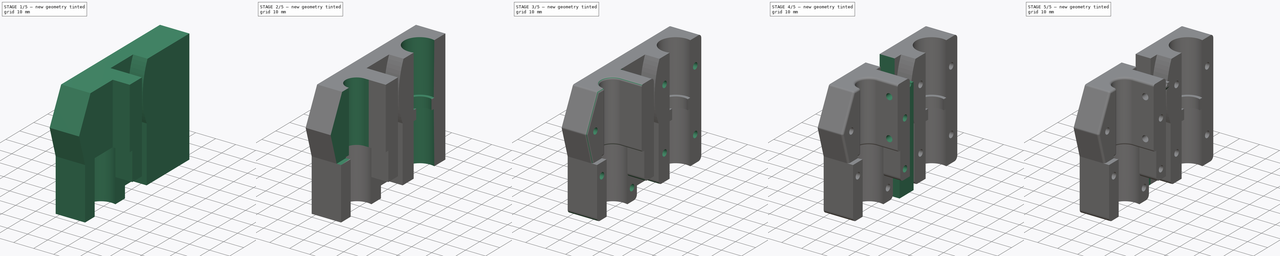
[diagram: build sequence overview — one tinted view per stage of 5, left to right]
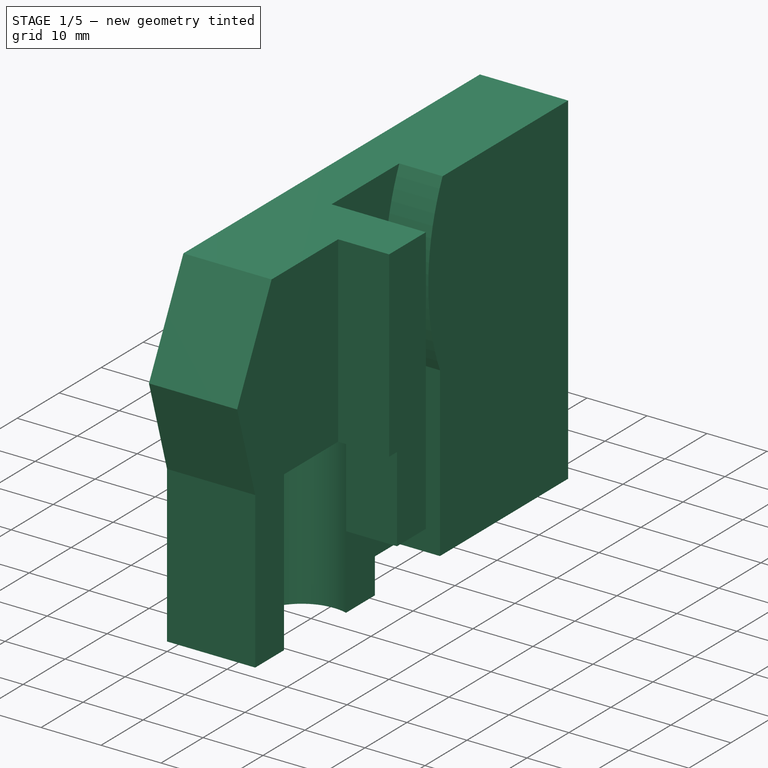
[diagram: stage 1 of 5 — iso view after this stage's code; geometry added in this stage tinted green]
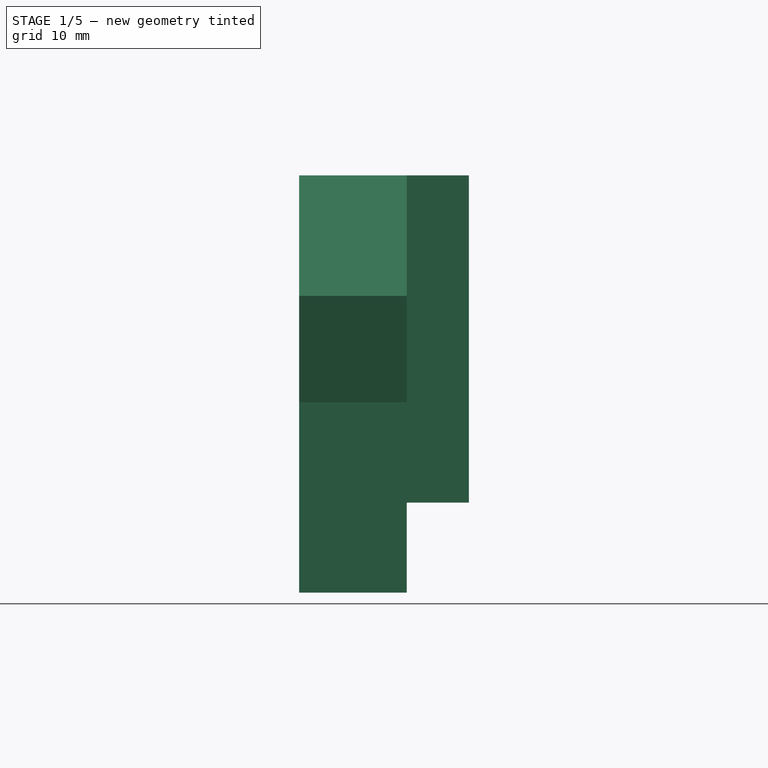
[diagram: stage 1 of 5 — front view after this stage's code; geometry added in this stage tinted green]
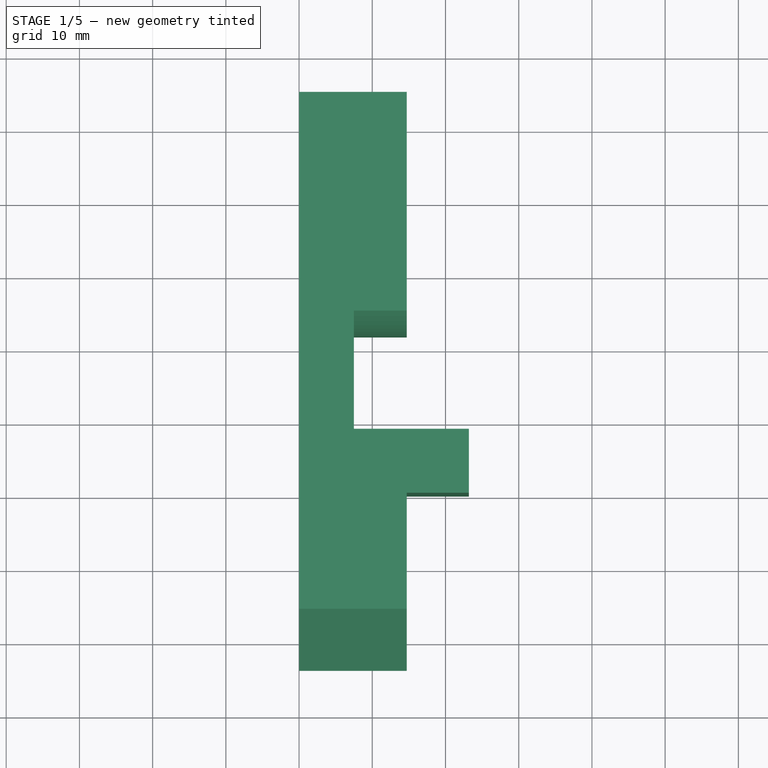
[diagram: stage 1 of 5 — top view after this stage's code; geometry added in this stage tinted green]
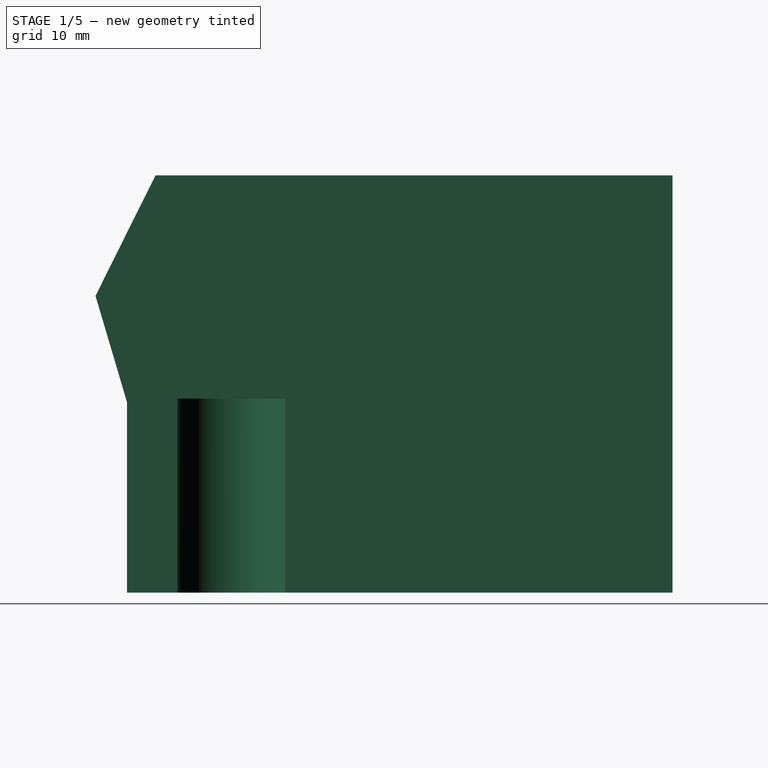
[diagram: stage 1 of 5 — right view after this stage's code; geometry added in this stage tinted green]
FCSTD DOCUMENT  (FreeCAD 0.16R6712 (Git))
Label: Toronado-Carrier
License: CC-BY 3.0
LicenseURL: http://creativecommons.org/licenses/by/3.0/
objects: Sketcher::SketchObject×17, PartDesign::Pocket×14, PartDesign::Pad×3, PartDesign::Fillet×3
note: 54 computed .brp shape members not serialized (recipe doc carries the construction recipe); baked Part::Feature solids carry a one-line shape summary decoded from their .brp

FEATURE [Sketcher::SketchObject] Sketch018
  Placement = pos=(0,0,0) rot=(0.57735,0.57735,0.57735;2.0944rad)
  sketch-geometry (6):
    g0: LineSegment StartX=0 StartY=0 StartZ=0 EndX=0 EndY=26 EndZ=0
    g1: LineSegment StartX=0 StartY=26 StartZ=0 EndX=-4.30684 EndY=40.5396 EndZ=0
    g2: LineSegment StartX=-4.30684 StartY=40.5396 StartZ=0 EndX=3.9 EndY=57 EndZ=0
    g3: LineSegment StartX=3.9 StartY=57 StartZ=0 EndX=74.5 EndY=57 EndZ=0
    g4: LineSegment StartX=74.5 StartY=57 StartZ=0 EndX=74.5 EndY=0 EndZ=0
    g5: LineSegment StartX=74.5 StartY=0 StartZ=0 EndX=0 EndY=0 EndZ=0
  constraints (17):
    c: Coincident(g-1,g0)
    c: Vertical(g0)
    c: Coincident(g0,g1)
    c: Coincident(g1,g2)
    c: Coincident(g2,g3)
    c: Horizontal(g3)
    c: Coincident(g3,g4)
    c: PointOnObject(g4,g-1)
    c: Vertical(g4)
    c: Coincident(g4,g5)
    c: Coincident(g5,g0)
    c: Distance(g4) = 57
    c: Distance(g5) = 74.5
    c: Distance(g0) = 26
    c: Distance(g3) = 70.6
    c: Angle(g1,g-2) = 2.85361
    c: Angle(g-2,g2) = 2.67908
FEATURE [PartDesign::Pad] Pad007
  Length = 14.7
  Length2 = 100
  Placement = pos=(0,0,0) rot=(0.57735,0.57735,0.57735;2.0944rad)
  Sketch = -> Sketch018
  Type = 0
FEATURE [Sketcher::SketchObject] Sketch019
  ExternalGeometry = -> [Pad007]
  Placement = pos=(14.7,0,0) rot=(0.57735,0.57735,0.57735;2.0944rad)
  Support = -> Pad007 [Face8]
  sketch-geometry (6):
    g0: LineSegment StartX=19.7447 StartY=57 StartZ=0 EndX=28.4947 EndY=57 EndZ=0
    g1: LineSegment StartX=28.4947 StartY=57 StartZ=0 EndX=28.4947 EndY=12.3 EndZ=0
    g2: LineSegment StartX=28.4947 StartY=12.3 StartZ=0 EndX=21.6234 EndY=12.3 EndZ=0
    g3: LineSegment StartX=21.6234 StartY=12.3 StartZ=0 EndX=21.6234 EndY=26.5 EndZ=0
    g4: LineSegment StartX=21.6234 StartY=26.5 StartZ=0 EndX=19.7447 EndY=26.5 EndZ=0
    g5: LineSegment StartX=19.7447 StartY=26.5 StartZ=0 EndX=19.7447 EndY=57 EndZ=0
  constraints (18):
    c: PointOnObject(g0,g-3)
    c: PointOnObject(g0,g-3)
    c: Coincident(g0,g1)
    c: Vertical(g1)
    c: Coincident(g1,g2)
    c: Horizontal(g2)
    c: Coincident(g2,g3)
    c: Vertical(g3)
    c: Coincident(g3,g4)
    c: Horizontal(g4)
    c: Coincident(g4,g5)
    c: Coincident(g5,g0)
    c: Vertical(g5)
    c: DistanceX(g-1,g0) = 19.7447
    c: Distance(g0) = 8.75
    c: Distance(g1) = 44.7
    c: Distance(g2) = 6.8713
    c: Distance(g5) = 30.5
FEATURE [PartDesign::Pad] Pad008
  Length = 8.5
  Length2 = 100
  Placement = pos=(0,0,0) rot=(0.57735,0.57735,0.57735;2.0944rad)
  Sketch = -> Sketch019
  Type = 0
FEATURE [Sketcher::SketchObject] Sketch021
  ExternalGeometry = -> [Pad008]
  Placement = pos=(14.7,0,0) rot=(0.57735,0.57735,0.57735;2.0944rad)
  Support = -> Pad008 [Face5]
  sketch-geometry (6):
    g0: ArcOfCircle CenterX=76.9236 CenterY=41.7971 CenterZ=0 NormalX=0 NormalY=0 NormalZ=1 Radius=35.7025 StartAngle=2.70172 EndAngle=3.53837
    g1: LineSegment StartX=43.9947 StartY=-6 StartZ=0 EndX=43.9947 EndY=28 EndZ=0
    g2: LineSegment StartX=43.9947 StartY=-6 StartZ=0 EndX=28.4947 EndY=-6 EndZ=0
    g3: LineSegment StartX=28.4947 StartY=-6 StartZ=0 EndX=28.4947 EndY=65 EndZ=0
    g4: LineSegment StartX=28.4947 StartY=65 StartZ=0 EndX=44.6197 EndY=65 EndZ=0
    g5: LineSegment StartX=44.6197 StartY=65 StartZ=0 EndX=44.6197 EndY=57 EndZ=0
  constraints (19):
    c: Coincident(g1,g0)
    c: Vertical(g1)
    c: Coincident(g1,g2)
    c: Horizontal(g2)
    c: Coincident(g2,g3)
    c: Vertical(g3)
    c: Coincident(g3,g4)
    c: Horizontal(g4)
    c: Distance(g2) = 15.5
    c: Distance(g3) = 71
    c: DistanceY(g-1,g0) = 28
    c: Coincident(g4,g5)
    c: Coincident(g5,g0)
    c: Vertical(g5)
    c: Distance(g4) = 16.125
    c: DistanceY(g-1,g2) = -6
    c: Radius(g0) = 35.7025
    c: PointOnObject(g-4,g3)
    c: PointOnObject(g0,g-4)
FEATURE [PartDesign::Pocket] Pocket017
  Length = 7.22
  Placement = pos=(0,0,0) rot=(0.57735,0.57735,0.57735;2.0944rad)
  Sketch = -> Sketch021
  Type = 0
FEATURE [Sketcher::SketchObject] Sketch022
  Placement = pos=(0,0,0) rot=(0.707107,0.707107,0;3.14159rad)
  Support = -> Pocket017 [Face2]
  sketch-geometry (1):
    g0: Circle CenterX=14.25 CenterY=12.5 CenterZ=0 NormalX=0 NormalY=0 NormalZ=1 Radius=7.7
  constraints (3):
    c: Radius(g0) = 7.7
    c: DistanceX(g-1,g0) = 14.25
    c: DistanceY(g-1,g0) = 12.5
FEATURE [PartDesign::Pocket] Pocket018
  Length = 26.5
  Placement = pos=(0,0,0) rot=(0.57735,0.57735,0.57735;2.0944rad)
  Sketch = -> Sketch022
  Type = 0
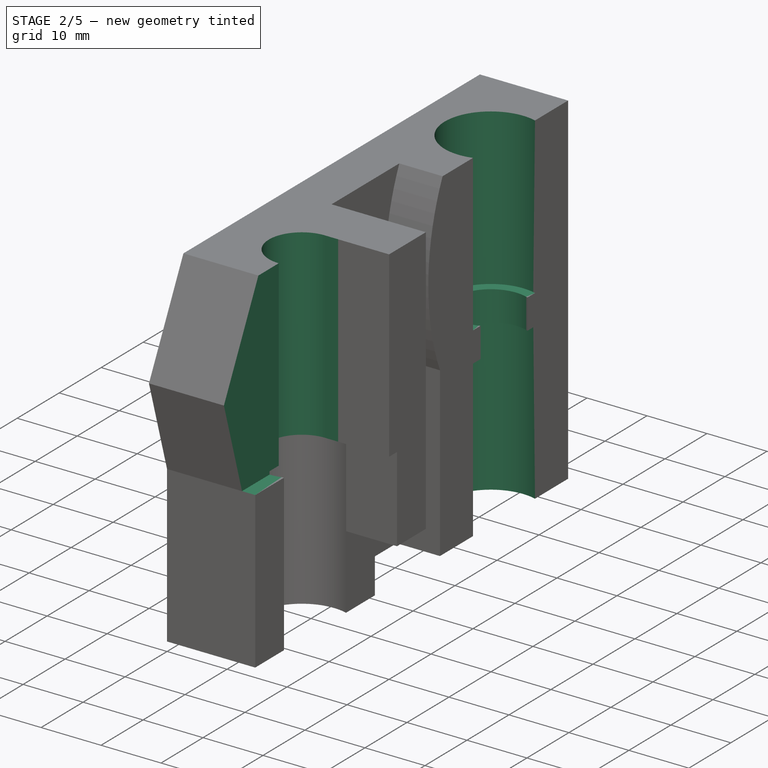
[diagram: stage 2 of 5 — iso view after this stage's code; geometry added in this stage tinted green]
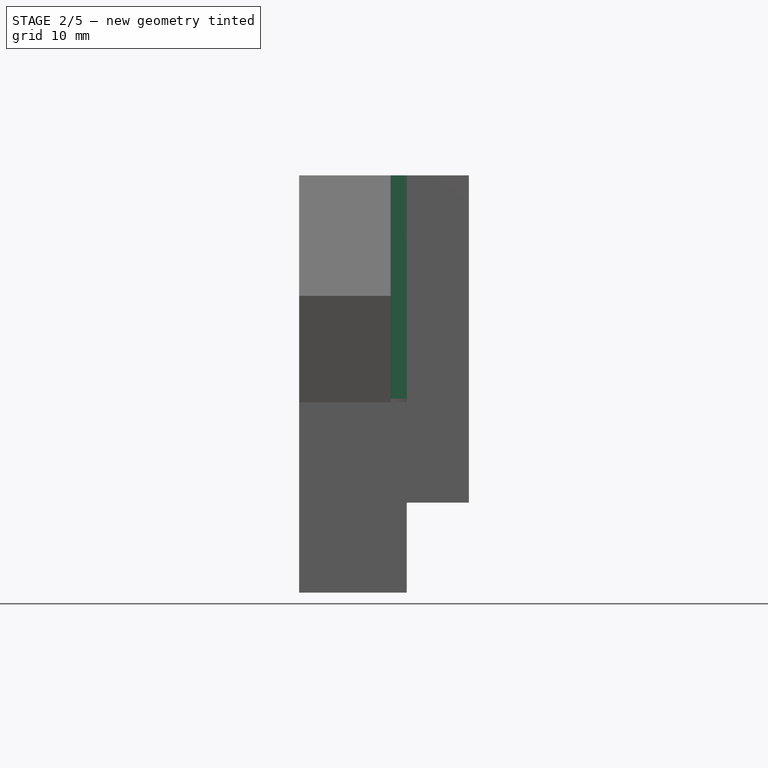
[diagram: stage 2 of 5 — front view after this stage's code; geometry added in this stage tinted green]
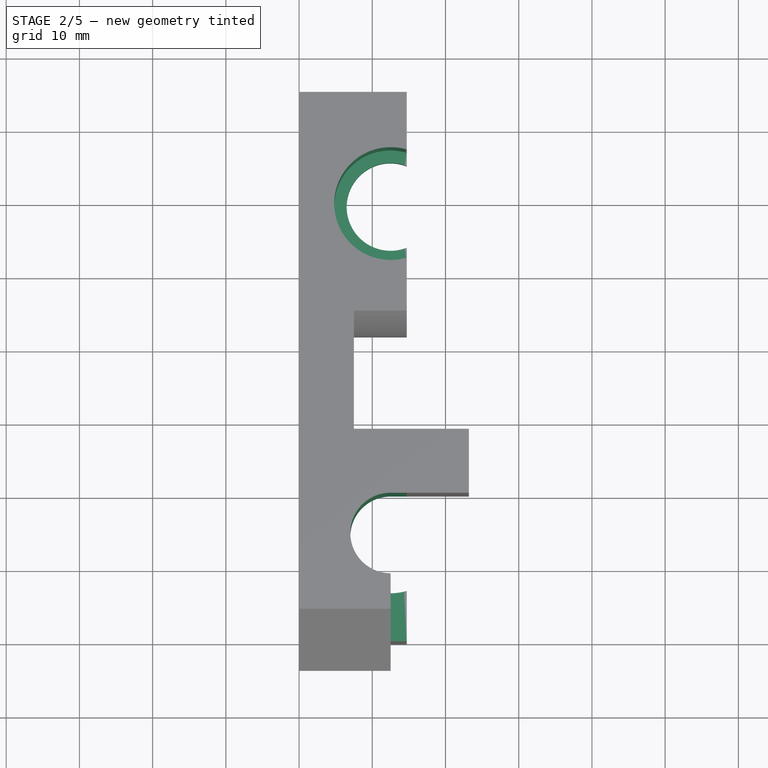
[diagram: stage 2 of 5 — top view after this stage's code; geometry added in this stage tinted green]
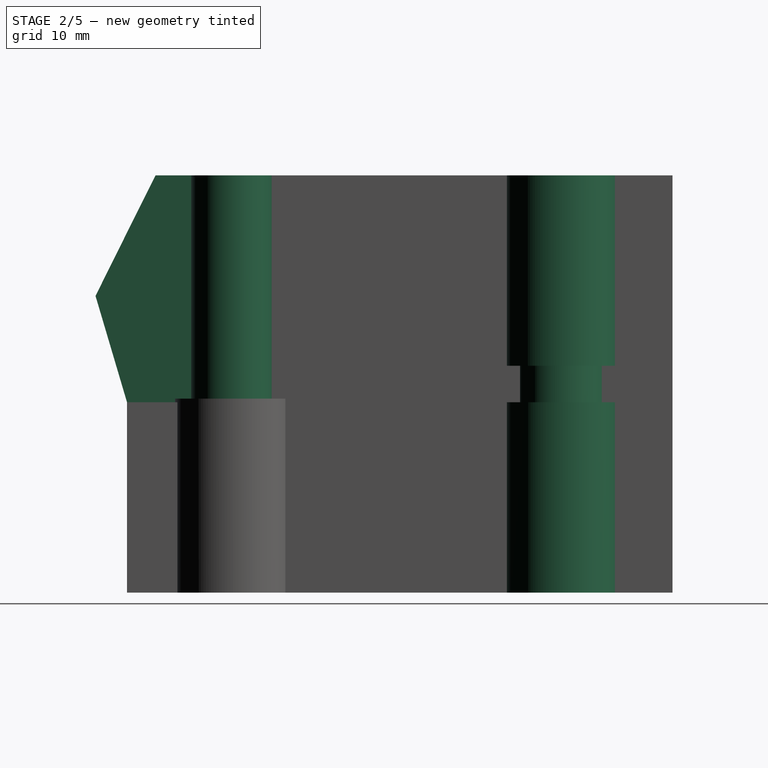
[diagram: stage 2 of 5 — right view after this stage's code; geometry added in this stage tinted green]
FEATURE [Sketcher::SketchObject] Sketch023
  ExternalGeometry = -> [Pocket018]
  Placement = pos=(0,0,0) rot=(0.707107,0.707107,0;3.14159rad)
  Support = -> Pocket018 [Face2]
  sketch-geometry (1):
    g0: Circle CenterX=59.25 CenterY=12.5 CenterZ=0 NormalX=0 NormalY=0 NormalZ=1 Radius=7.7
  constraints (3):
    c: DistanceX(g-3,g0) = 45
    c: DistanceY(g-3,g0) = 0
    c: Radius(g0) = 7.7
FEATURE [PartDesign::Pocket] Pocket019
  Length = 26
  Placement = pos=(0,0,0) rot=(0.57735,0.57735,0.57735;2.0944rad)
  Sketch = -> Sketch023
  Type = 0
FEATURE [Sketcher::SketchObject] Sketch024
  ExternalGeometry = -> [Pocket019]
  Placement = pos=(0,0,57) rot=(0,0,-1;1.5708rad)
  Support = -> Pocket019 [Face17]
  sketch-geometry (2):
    g0: Circle CenterX=-59.25 CenterY=12.5 CenterZ=0 NormalX=0 NormalY=0 NormalZ=1 Radius=6
    g1: Circle CenterX=-14.25 CenterY=12.5 CenterZ=0 NormalX=0 NormalY=0 NormalZ=1 Radius=5.5
  constraints (4):
    c: Radius(g0) = 6
    c: Radius(g1) = 5.5
    c: Coincident(g0,g-5)
    c: Coincident(g1,g-6)
FEATURE [PartDesign::Pocket] Pocket020
  Length = 5
  Placement = pos=(0,0,0) rot=(0.57735,0.57735,0.57735;2.0944rad)
  Sketch = -> Sketch024
  Type = 1
FEATURE [Sketcher::SketchObject] Sketch025
  ExternalGeometry = -> [Pocket020]
  Placement = pos=(0,0,57) rot=(0,0,-1;1.5708rad)
  Support = -> Pocket020 [Face18]
  sketch-geometry (1):
    g0: Circle CenterX=-59.25 CenterY=12.5 CenterZ=0 NormalX=0 NormalY=0 NormalZ=1 Radius=7.7
  constraints (2):
    c: Radius(g0) = 7.7
    c: Coincident(g0,g-4)
FEATURE [PartDesign::Pocket] Pocket021
  Length = 26
  Placement = pos=(0,0,0) rot=(0.57735,0.57735,0.57735;2.0944rad)
  Sketch = -> Sketch025
  Type = 0
FEATURE [Sketcher::SketchObject] Sketch020
  ExternalGeometry = -> [Pad008,Pocket021]
  Placement = pos=(14.7,0,0) rot=(0.57735,0.57735,0.57735;2.0944rad)
  Support = -> Pocket021 [Face5]
  sketch-geometry (4):
    g0: LineSegment StartX=19.7447 StartY=26 StartZ=0 EndX=-6 EndY=26 EndZ=0
    g1: LineSegment StartX=-6 StartY=26 StartZ=0 EndX=-6 EndY=61 EndZ=0
    g2: LineSegment StartX=-6 StartY=61 StartZ=0 EndX=19.7447 EndY=61 EndZ=0
    g3: LineSegment StartX=19.7447 StartY=61 StartZ=0 EndX=19.7447 EndY=26 EndZ=0
  constraints (12):
    c: Coincident(g0,g1)
    c: Coincident(g1,g2)
    c: Coincident(g2,g3)
    c: Coincident(g3,g0)
    c: Horizontal(g0)
    c: Horizontal(g2)
    c: Vertical(g1)
    c: Vertical(g3)
    c: PointOnObject(g-3,g0)
    c: Distance(g1) = 35
    c: DistanceX(g-1,g0) = -6
    c: PointOnObject(g-4,g3)
FEATURE [PartDesign::Pocket] Pocket022
  Length = 2.2
  Placement = pos=(0,0,0) rot=(0.57735,0.57735,0.57735;2.0944rad)
  Sketch = -> Sketch020
  Type = 0
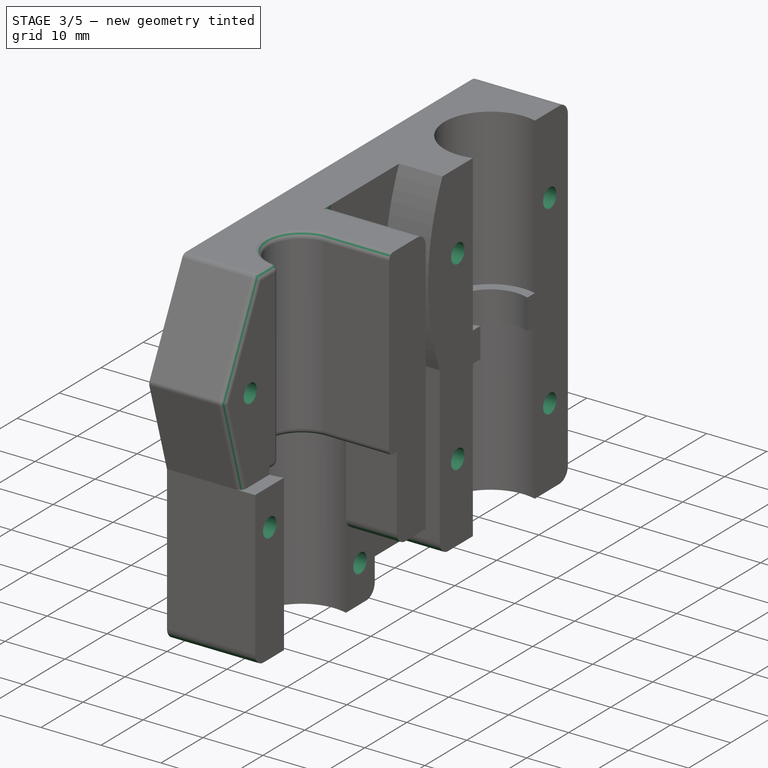
[diagram: stage 3 of 5 — iso view after this stage's code; geometry added in this stage tinted green]
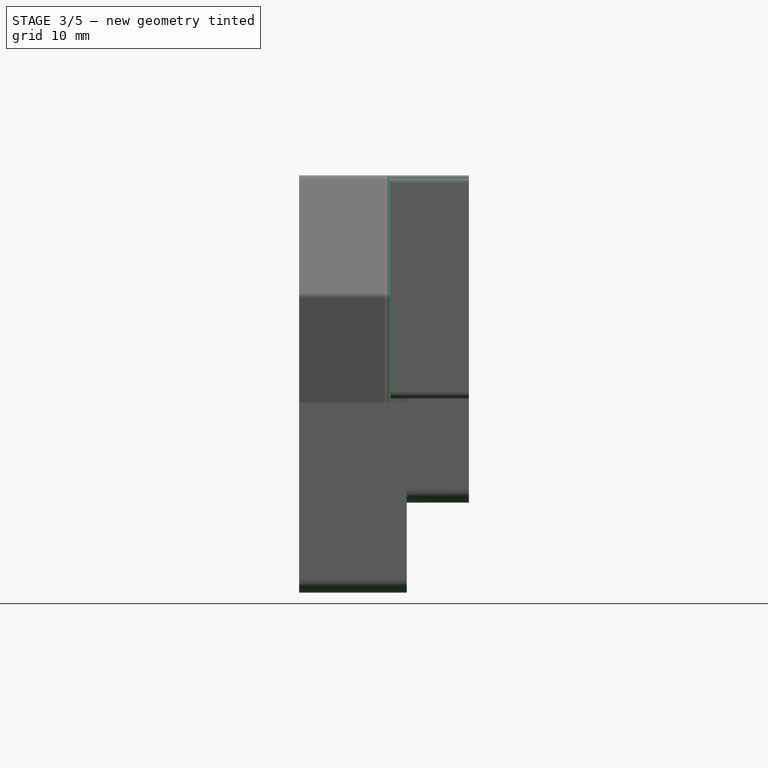
[diagram: stage 3 of 5 — front view after this stage's code; geometry added in this stage tinted green]
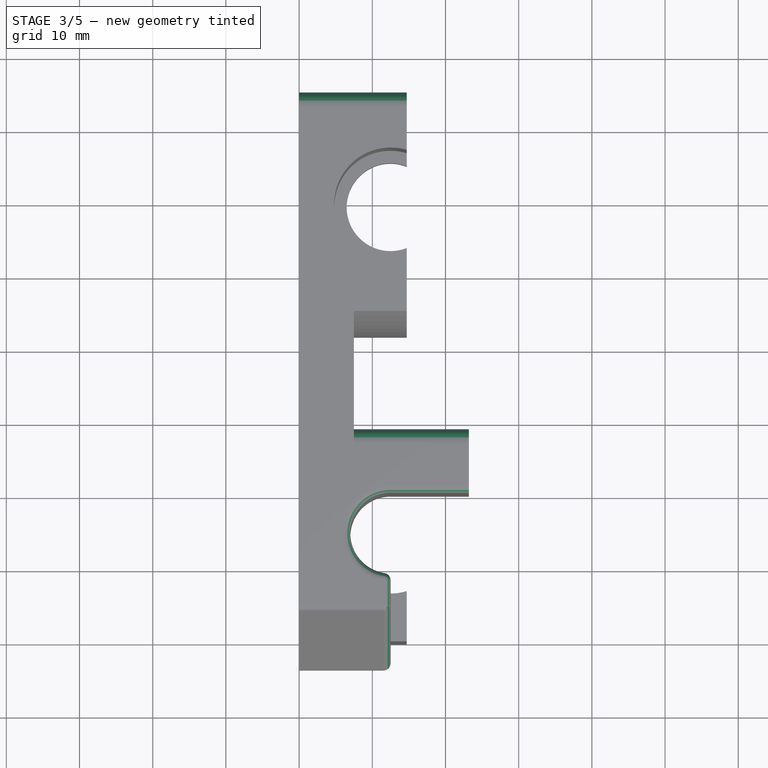
[diagram: stage 3 of 5 — top view after this stage's code; geometry added in this stage tinted green]
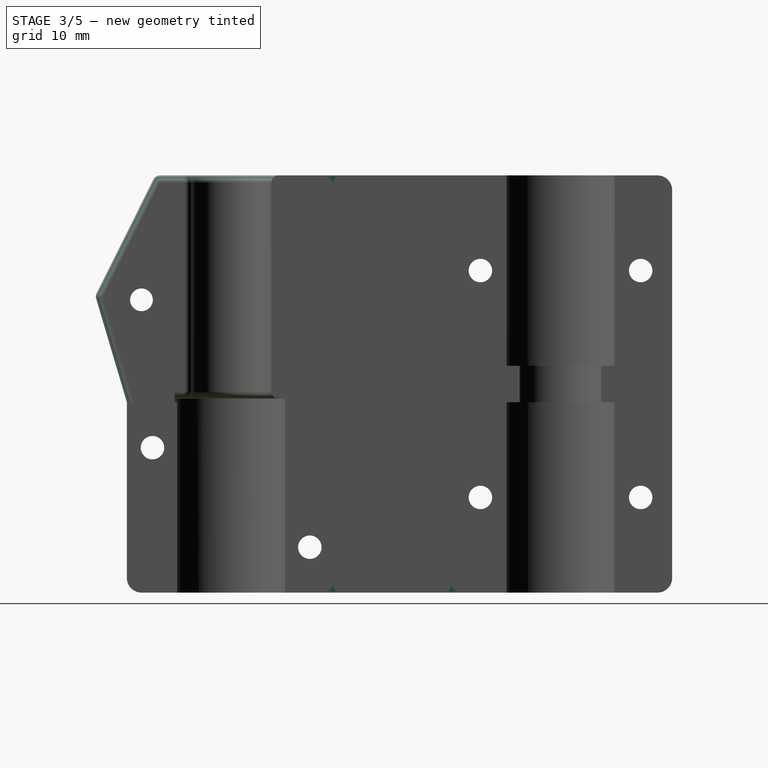
[diagram: stage 3 of 5 — right view after this stage's code; geometry added in this stage tinted green]
FEATURE [PartDesign::Fillet] Fillet
  Base = -> Pocket022 [Edge71,Edge78]
  Placement = pos=(0,0,0) rot=(0.57735,0.57735,0.57735;2.0944rad)
  Radius = 1
FEATURE [PartDesign::Fillet] Fillet001
  Base = -> Fillet [Edge8,Edge6,Edge30,Edge40,Edge32]
  Placement = pos=(0,0,0) rot=(0.57735,0.57735,0.57735;2.0944rad)
  Radius = 1
FEATURE [PartDesign::Fillet] Fillet002
  Base = -> Fillet001 [Edge95,Edge134,Edge101,Edge38,Edge39,Edge8,Edge7,Edge27]
  Placement = pos=(0,0,0) rot=(0.57735,0.57735,0.57735;2.0944rad)
  Radius = 2
FEATURE [Sketcher::SketchObject] Sketch026
  Placement = pos=(14.7,0,0) rot=(0.57735,0.57735,0.57735;2.0944rad)
  Support = -> Fillet002 [Face51]
  sketch-geometry (7):
    g0: Circle CenterX=2 CenterY=40 CenterZ=0 NormalX=0 NormalY=0 NormalZ=1 Radius=1.55
    g1: Circle CenterX=3.5 CenterY=19.8 CenterZ=0 NormalX=0 NormalY=0 NormalZ=1 Radius=1.6
    g2: Circle CenterX=25 CenterY=6.2 CenterZ=0 NormalX=0 NormalY=0 NormalZ=1 Radius=1.6
    g3: Circle CenterX=48.3 CenterY=44 CenterZ=0 NormalX=0 NormalY=0 NormalZ=1 Radius=1.6
    g4: Circle CenterX=48.3 CenterY=13 CenterZ=0 NormalX=0 NormalY=0 NormalZ=1 Radius=1.6
    g5: Circle CenterX=70.2 CenterY=44 CenterZ=0 NormalX=0 NormalY=0 NormalZ=1 Radius=1.6
    g6: Circle CenterX=70.2 CenterY=13 CenterZ=0 NormalX=0 NormalY=0 NormalZ=1 Radius=1.6
  constraints (21):
    c: Radius(g5) = 1.6
    c: Equal(g5,g6)
    c: Equal(g6,g3)
    c: Equal(g3,g4)
    c: Equal(g4,g2)
    c: DistanceX(g6,g5) = 0
    c: DistanceY(g5,g6) = -31
    c: DistanceY(g3,g4) = -31
    c: DistanceY(g3,g5) = 0
    c: DistanceX(g3,g4) = 0
    c: DistanceY(g-1,g4) = 13
    c: DistanceY(g-1,g2) = 6.2
    c: DistanceX(g-1,g2) = 25
    c: DistanceX(g-1,g4) = 48.3
    c: DistanceX(g4,g6) = 21.9
    c: DistanceX(g-1,g1) = 3.5
    c: DistanceY(g-1,g1) = 19.8
    c: Equal(g1,g5)
    c: Radius(g0) = 1.55
    c: DistanceX(g-1,g0) = 2
    c: DistanceY(g-1,g0) = 40
FEATURE [PartDesign::Pocket] Pocket023
  Length = 5
  Placement = pos=(0,0,0) rot=(0.57735,0.57735,0.57735;2.0944rad)
  Sketch = -> Sketch026
  Type = 1
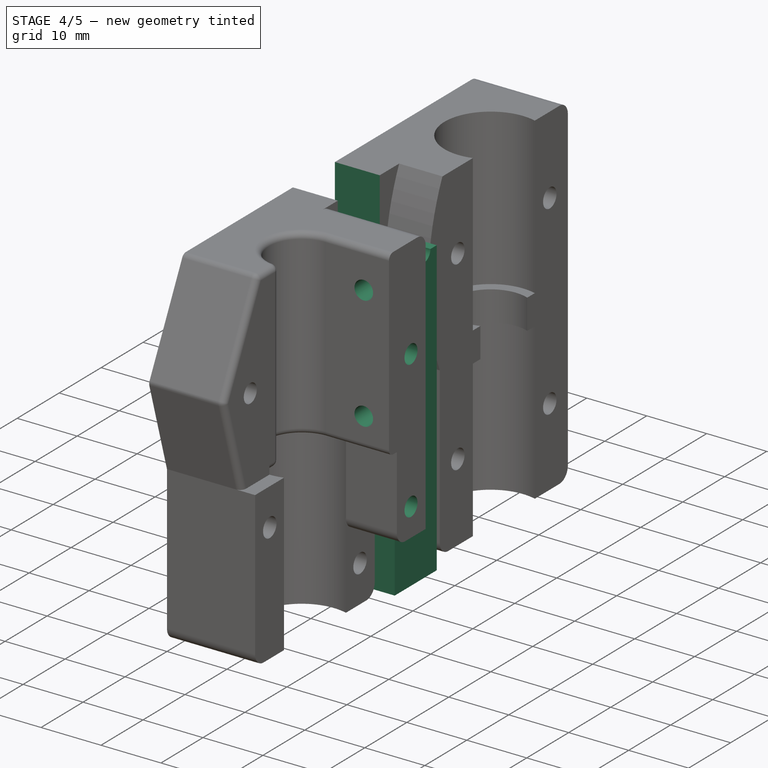
[diagram: stage 4 of 5 — iso view after this stage's code; geometry added in this stage tinted green]
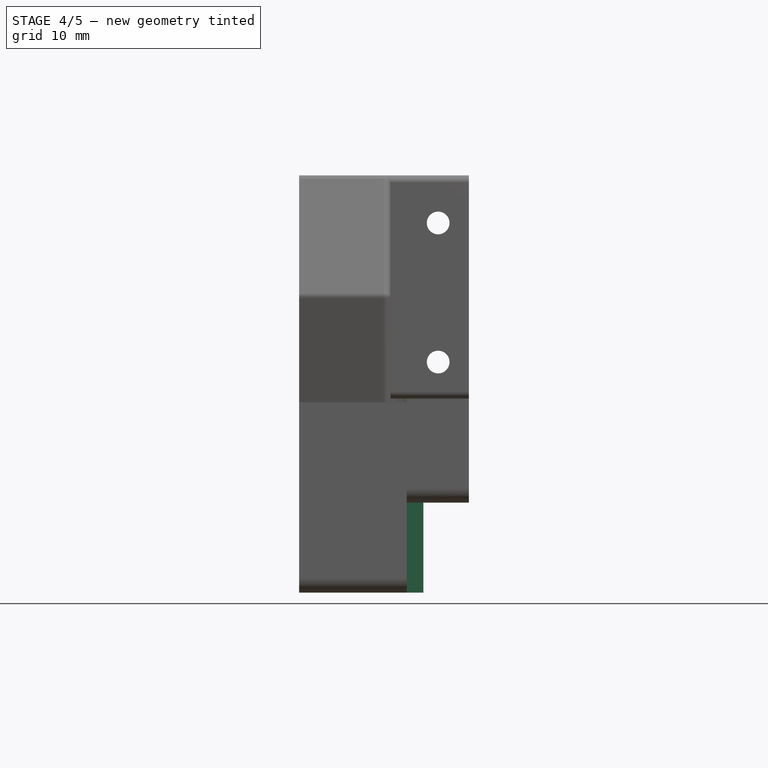
[diagram: stage 4 of 5 — front view after this stage's code; geometry added in this stage tinted green]
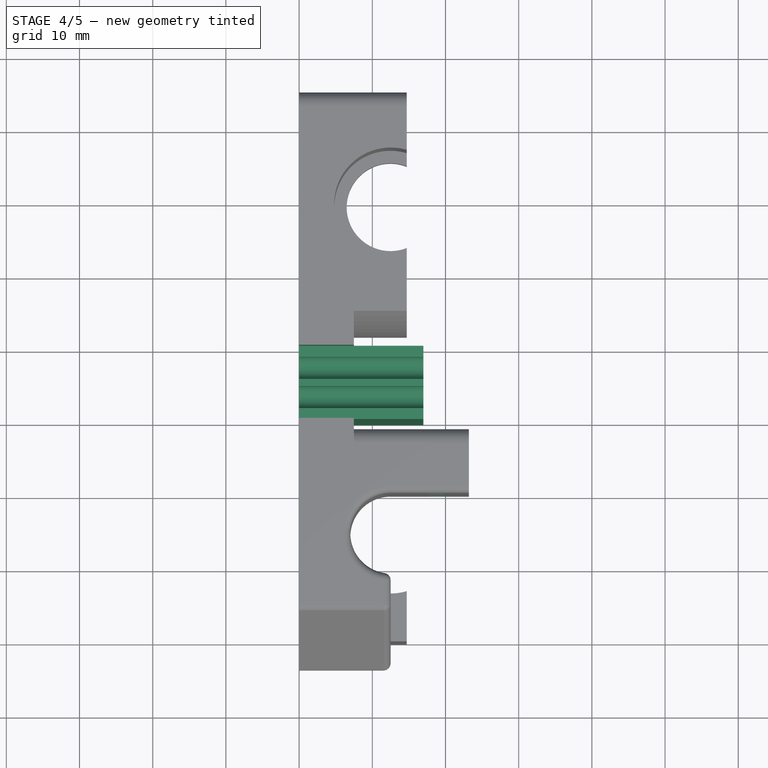
[diagram: stage 4 of 5 — top view after this stage's code; geometry added in this stage tinted green]
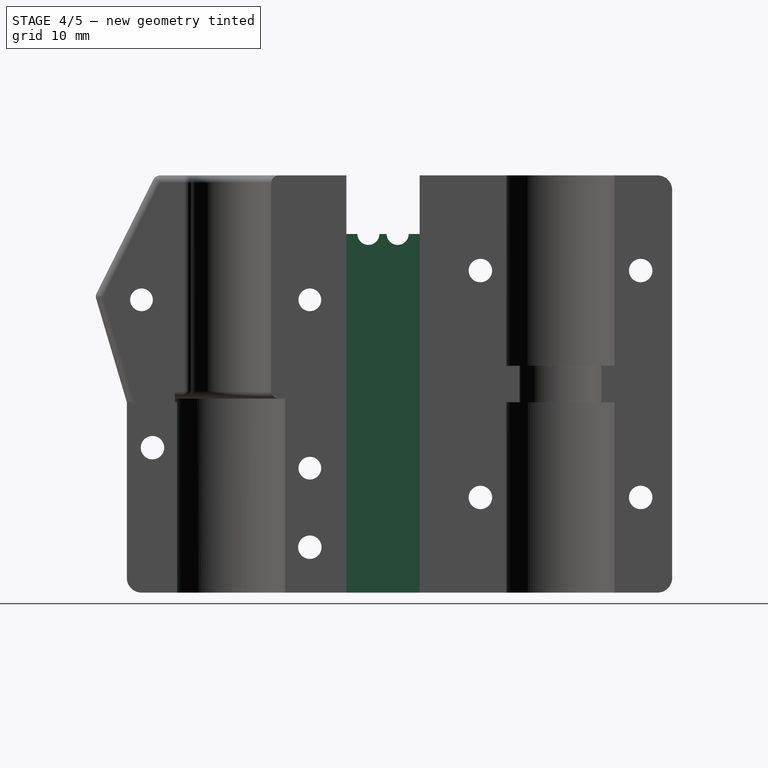
[diagram: stage 4 of 5 — right view after this stage's code; geometry added in this stage tinted green]
FEATURE [Sketcher::SketchObject] Sketch027
  Placement = pos=(23.2,0,0) rot=(0.57735,0.57735,0.57735;2.0944rad)
  Support = -> Pocket023 [Face18]
  sketch-geometry (2):
    g0: Circle CenterX=25 CenterY=40 CenterZ=0 NormalX=0 NormalY=0 NormalZ=1 Radius=1.55
    g1: Circle CenterX=25 CenterY=17 CenterZ=0 NormalX=0 NormalY=0 NormalZ=1 Radius=1.55
  constraints (6):
    c: Radius(g0) = 1.55
    c: DistanceX(g-1,g0) = 25
    c: DistanceY(g-1,g0) = 40
    c: Equal(g1,g0)
    c: DistanceX(g-1,g1) = 25
    c: DistanceY(g-1,g1) = 17
FEATURE [PartDesign::Pocket] Pocket024
  Length = 5
  Placement = pos=(0,0,0) rot=(0.57735,0.57735,0.57735;2.0944rad)
  Sketch = -> Sketch027
  Type = 1
FEATURE [Sketcher::SketchObject] Sketch028
  Placement = pos=(0,19.7447,0) rot=(0.57735,0.57735,-0.57735;2.0944rad)
  Support = -> Pocket024 [Face52]
  sketch-geometry (2):
    g0: Circle CenterX=-50.5 CenterY=19 CenterZ=0 NormalX=0 NormalY=0 NormalZ=1 Radius=1.55
    g1: Circle CenterX=-31.5 CenterY=19 CenterZ=0 NormalX=0 NormalY=0 NormalZ=1 Radius=1.55
  constraints (6):
    c: Equal(g0,g1)
    c: Radius(g0) = 1.55
    c: DistanceX(g-1,g0) = -50.5
    c: DistanceY(g-1,g0) = 19
    c: DistanceX(g-1,g1) = -31.5
    c: DistanceY(g-1,g1) = 19
FEATURE [PartDesign::Pocket] Pocket025
  Length = 10
  Placement = pos=(0,0,0) rot=(0.57735,0.57735,0.57735;2.0944rad)
  Sketch = -> Sketch028
  Type = 0
FEATURE [Sketcher::SketchObject] Sketch029
  ExternalGeometry = -> [Pocket025]
  Placement = pos=(7.48,0,0) rot=(0.57735,0.57735,0.57735;2.0944rad)
  Support = -> Pocket025 [Face5]
  sketch-geometry (4):
    g0: LineSegment StartX=30 StartY=57 StartZ=0 EndX=40 EndY=57 EndZ=0
    g1: LineSegment StartX=40 StartY=57 StartZ=0 EndX=40 EndY=0 EndZ=0
    g2: LineSegment StartX=40 StartY=0 StartZ=0 EndX=30 EndY=0 EndZ=0
    g3: LineSegment StartX=30 StartY=0 StartZ=0 EndX=30 EndY=57 EndZ=0
  constraints (12):
    c: Coincident(g0,g1)
    c: Coincident(g1,g2)
    c: Coincident(g2,g3)
    c: Coincident(g3,g0)
    c: Horizontal(g0)
    c: Horizontal(g2)
    c: Vertical(g1)
    c: Vertical(g3)
    c: PointOnObject(g2,g-4)
    c: PointOnObject(g0,g-3)
    c: DistanceX(g-1,g2) = 30
    c: DistanceX(g2,g1) = 10
FEATURE [PartDesign::Pad] Pad009
  Length = 9.5
  Length2 = 100
  Placement = pos=(0,0,0) rot=(0.57735,0.57735,0.57735;2.0944rad)
  Sketch = -> Sketch029
  Type = 0
FEATURE [Sketcher::SketchObject] Sketch030  label="cutout-4-sketch001"
  ExternalGeometry = -> [Pad009]
  Placement = pos=(16.98,0,0) rot=(0.57735,0.57735,0.57735;2.0944rad)
  Support = -> Pad009 [Face39]
  sketch-geometry (8):
    g0: LineSegment StartX=30 StartY=49 StartZ=0 EndX=30 EndY=57 EndZ=0
    g1: LineSegment StartX=30 StartY=57 StartZ=0 EndX=40 EndY=57 EndZ=0
    g2: LineSegment StartX=40 StartY=57 StartZ=0 EndX=40 EndY=49 EndZ=0
    g3: ArcOfCircle CenterX=33 CenterY=49 CenterZ=0 NormalX=0 NormalY=0 NormalZ=1 Radius=1.5 StartAngle=3.14159 EndAngle=6.28319
    g4: ArcOfCircle CenterX=37 CenterY=49 CenterZ=0 NormalX=0 NormalY=0 NormalZ=1 Radius=1.5 StartAngle=3.14159 EndAngle=6.28319
    g5: LineSegment StartX=34.5 StartY=49 StartZ=0 EndX=35.5 EndY=49 EndZ=0
    g6: LineSegment StartX=30 StartY=49 StartZ=0 EndX=31.5 EndY=49 EndZ=0
    g7: LineSegment StartX=38.5 StartY=49 StartZ=0 EndX=40 EndY=49 EndZ=0
  constraints (25):
    c: Coincident(g0,g1)
    c: Horizontal(g1)
    c: Vertical(g0)
    c: Horizontal(g6)
    c: Horizontal(g5)
    c: Horizontal(g7)
    c: Vertical(g2)
    c: Coincident(g1,g2)
    c: Coincident(g7,g2)
    c: Coincident(g6,g0)
    c: Coincident(g3,g6)
    c: Coincident(g5,g3)
    c: Coincident(g4,g5)
    c: Coincident(g4,g7)
    c: Equal(g3,g4)
    c: PointOnObject(g3,g6)
    c: PointOnObject(g3,g6)
    c: PointOnObject(g4,g5)
    c: PointOnObject(g4,g5)
    c: Equal(g6,g7)
    c: Radius(g3) = 1.5
    c: DistanceX(g5) = 1
    c: DistanceY(g0,g0) = 8
    c: Coincident(g0,g-3)
    c: Coincident(g1,g-3)
FEATURE [PartDesign::Pocket] Pocket026
  Length = 5
  Placement = pos=(0,0,0) rot=(0.57735,0.57735,0.57735;2.0944rad)
  Sketch = -> Sketch030
  Type = 1
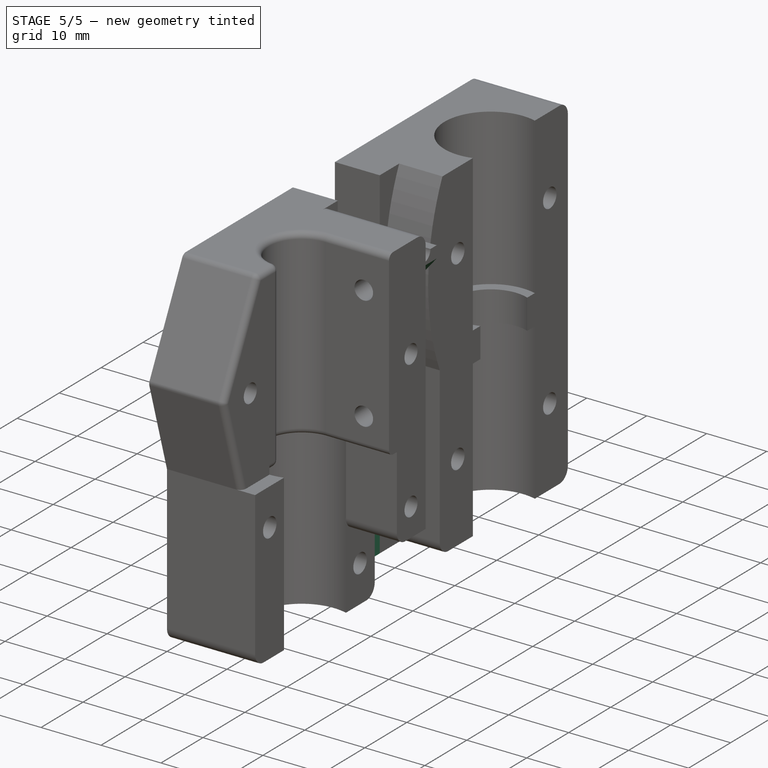
[diagram: stage 5 of 5 — iso view after this stage's code; geometry added in this stage tinted green]
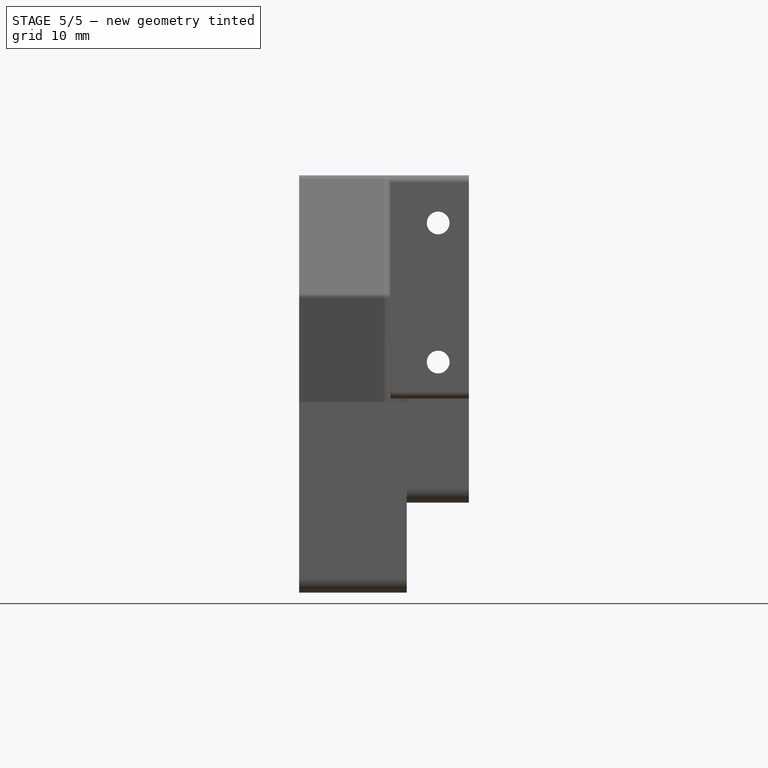
[diagram: stage 5 of 5 — front view after this stage's code; geometry added in this stage tinted green]
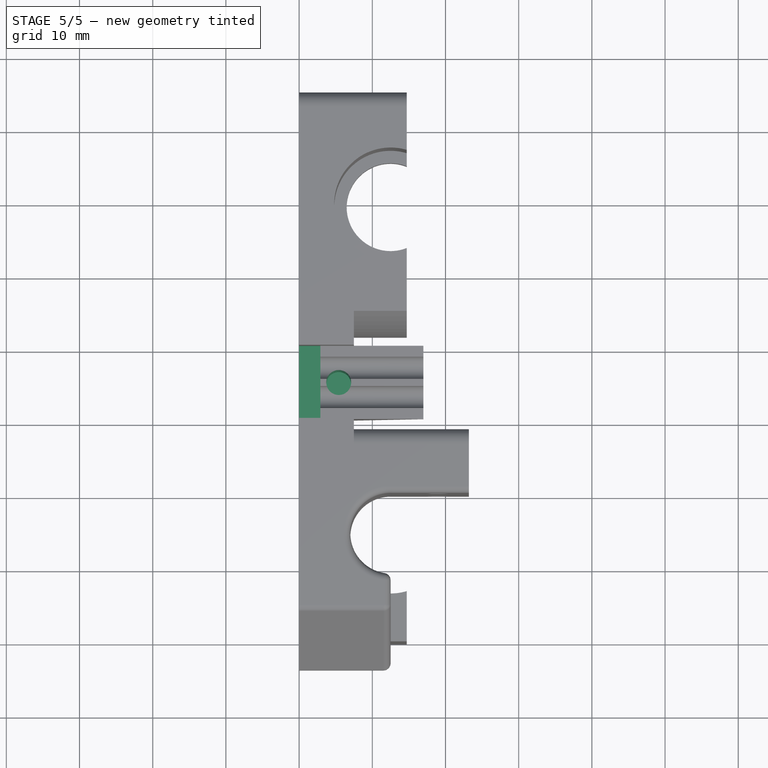
[diagram: stage 5 of 5 — top view after this stage's code; geometry added in this stage tinted green]
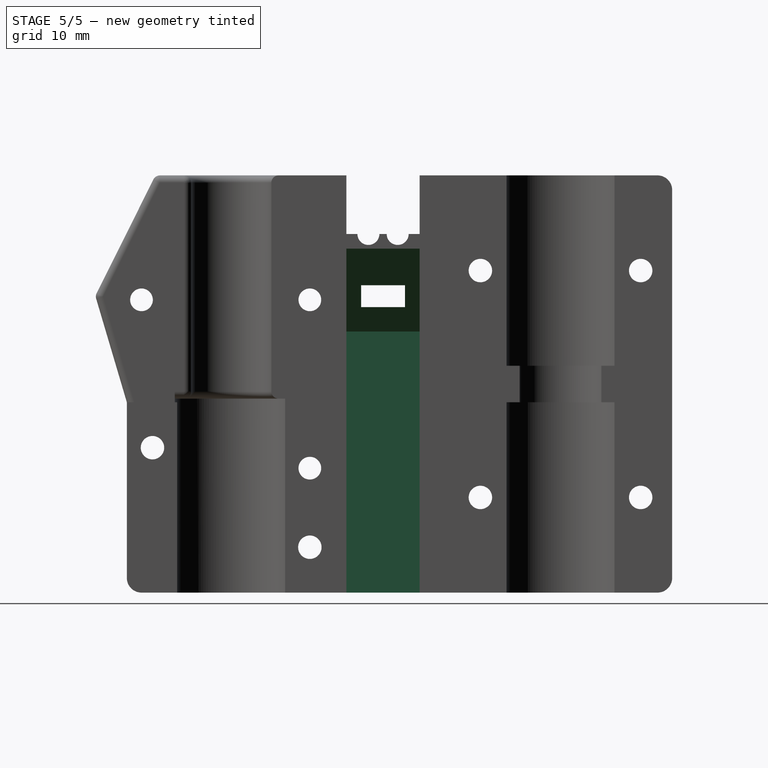
[diagram: stage 5 of 5 — right view after this stage's code; geometry added in this stage tinted green]
FEATURE [Sketcher::SketchObject] Sketch031
  ExternalGeometry = -> [Pocket026]
  Placement = pos=(0,0,49) rot=(0,0,-1;1.5708rad)
  Support = -> Pocket026 [Face40]
  sketch-geometry (4):
    g0: LineSegment StartX=-40 StartY=0 StartZ=0 EndX=-30 EndY=0 EndZ=0
    g1: LineSegment StartX=-30 StartY=0 StartZ=0 EndX=-30 EndY=2.9 EndZ=0
    g2: LineSegment StartX=-30 StartY=2.9 StartZ=0 EndX=-40 EndY=2.9 EndZ=0
    g3: LineSegment StartX=-40 StartY=2.9 StartZ=0 EndX=-40 EndY=0 EndZ=0
  constraints (11):
    c: Coincident(g0,g1)
    c: Coincident(g1,g2)
    c: Coincident(g2,g3)
    c: Coincident(g3,g0)
    c: Horizontal(g0)
    c: Horizontal(g2)
    c: Vertical(g1)
    c: Vertical(g3)
    c: Distance(g1) = 2.9
    c: Coincident(g0,g-3)
    c: Coincident(g0,g-4)
FEATURE [PartDesign::Pocket] Pocket027
  Length = 1.5
  Placement = pos=(0,0,0) rot=(0.57735,0.57735,0.57735;2.0944rad)
  Sketch = -> Sketch031
  Type = 0
FEATURE [Sketcher::SketchObject] Sketch032
  ExternalGeometry = -> [Pocket027]
  Placement = pos=(0,40,0) rot=(0.57735,0.57735,0.57735;4.18879rad)
  Support = -> Pocket027 [Face94]
  sketch-geometry (4):
    g0: LineSegment StartX=0 StartY=7.48 StartZ=0 EndX=0 EndY=16.98 EndZ=0
    g1: LineSegment StartX=0 StartY=16.98 StartZ=0 EndX=47 EndY=16.98 EndZ=0
    g2: LineSegment StartX=47 StartY=16.98 StartZ=0 EndX=35.6783 EndY=7.48 EndZ=0
    g3: LineSegment StartX=35.6783 StartY=7.48 StartZ=0 EndX=0 EndY=7.48 EndZ=0
  constraints (11):
    c: Vertical(g0)
    c: Coincident(g0,g1)
    c: Horizontal(g1)
    c: Coincident(g1,g2)
    c: Coincident(g2,g3)
    c: Coincident(g3,g0)
    c: Horizontal(g3)
    c: Coincident(g0,g-3)
    c: Coincident(g-3,g0)
    c: Distance(g1) = 47
    c: Angle(g2,g-1) = 2.44346
FEATURE [PartDesign::Pocket] Pocket028
  Length = 0
  Placement = pos=(0,0,0) rot=(0.57735,0.57735,0.57735;2.0944rad)
  Sketch = -> Sketch032
  Type = 3
  UpToFace = -> Pocket027 [Face54]
FEATURE [Sketcher::SketchObject] Sketch033
  ExternalGeometry = -> [Pocket028]
  Placement = pos=(0,0,49) rot=(0,0,-1;1.5708rad)
  Support = -> Pocket028 [Face97]
  sketch-geometry (2):
    g0: Circle CenterX=-35 CenterY=5.41526 CenterZ=0 NormalX=0 NormalY=0 NormalZ=1 Radius=1.7
    g1: LineSegment [constr] StartX=-35 StartY=2.9 StartZ=0 EndX=-35 EndY=8.9 EndZ=0
  constraints (7):
    c: Radius(g0) = 1.7
    c: DistanceY(g-1,g0) = 5.41526
    c: PointOnObject(g1,g-3)
    c: Vertical(g1)
    c: Symmetric(g-3,g-3,g1)
    c: Distance(g1) = 6
    c: PointOnObject(g0,g1)
FEATURE [PartDesign::Pocket] Pocket029
  Length = 16
  Placement = pos=(0,0,0) rot=(0.57735,0.57735,0.57735;2.0944rad)
  Sketch = -> Sketch033
  Type = 0
FEATURE [Sketcher::SketchObject] Sketch
  ExternalGeometry = -> [Pocket029]
  Placement = pos=(0,0,0) rot=(-0.57735,-0.57735,0.57735;2.0944rad)
  Support = -> Pocket029 [Face10]
  sketch-geometry (5):
    g0: LineSegment StartX=32 StartY=-39 StartZ=0 EndX=38 EndY=-39 EndZ=0
    g1: LineSegment StartX=38 StartY=-39 StartZ=0 EndX=38 EndY=-42 EndZ=0
    g2: LineSegment StartX=38 StartY=-42 StartZ=0 EndX=32 EndY=-42 EndZ=0
    g3: LineSegment StartX=32 StartY=-42 StartZ=0 EndX=32 EndY=-39 EndZ=0
    g4: LineSegment [constr] StartX=35 StartY=-47.5 StartZ=0 EndX=35 EndY=-42 EndZ=0
  constraints (16):
    c: Coincident(g0,g1)
    c: Coincident(g1,g2)
    c: Coincident(g2,g3)
    c: Coincident(g3,g0)
    c: Horizontal(g0)
    c: Horizontal(g2)
    c: Vertical(g1)
    c: Vertical(g3)
    c: Distance(g0) = 6
    c: Distance(g1) = 3
    c: Vertical(g4)
    c: PointOnObject(g4,g2)
    c: PointOnObject(g4,g-3)
    c: Symmetric(g-3,g-3,g4)
    c: Distance(g4) = 5.5
    c: Symmetric(g2,g1,g4)
FEATURE [PartDesign::Pocket] Pocket
  Length = 5
  Placement = pos=(0,0,0) rot=(0.57735,0.57735,0.57735;2.0944rad)
  Sketch = -> Sketch
  Type = 1
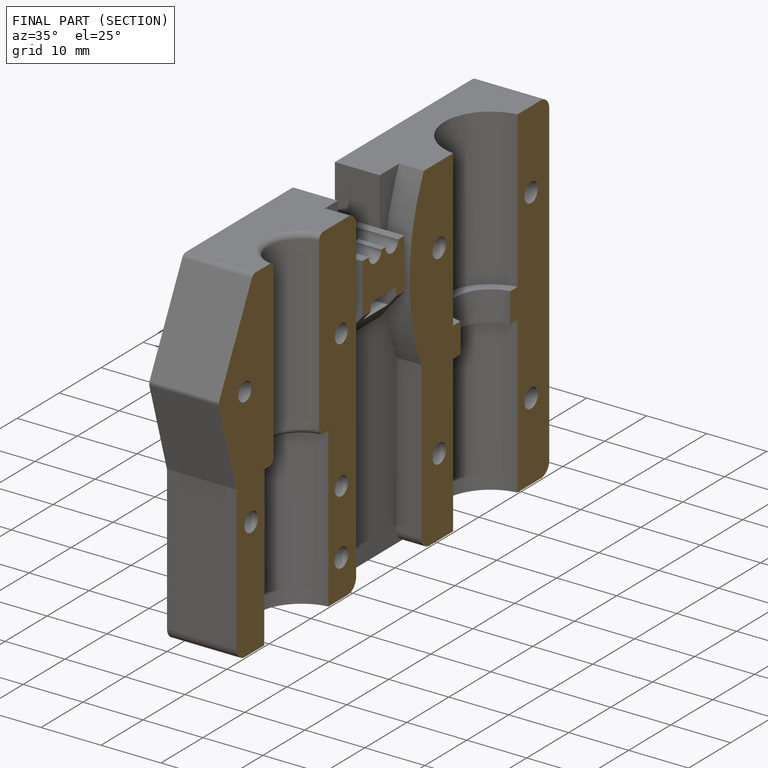
[diagram: finished part — half-section view (interior)]
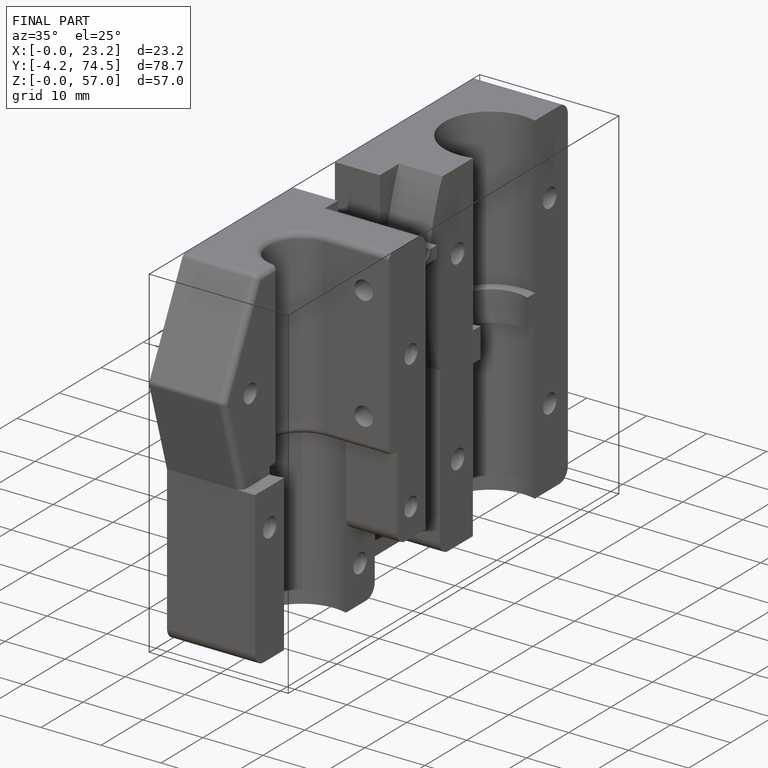
[diagram: finished part — iso view with bounding-box wireframe]
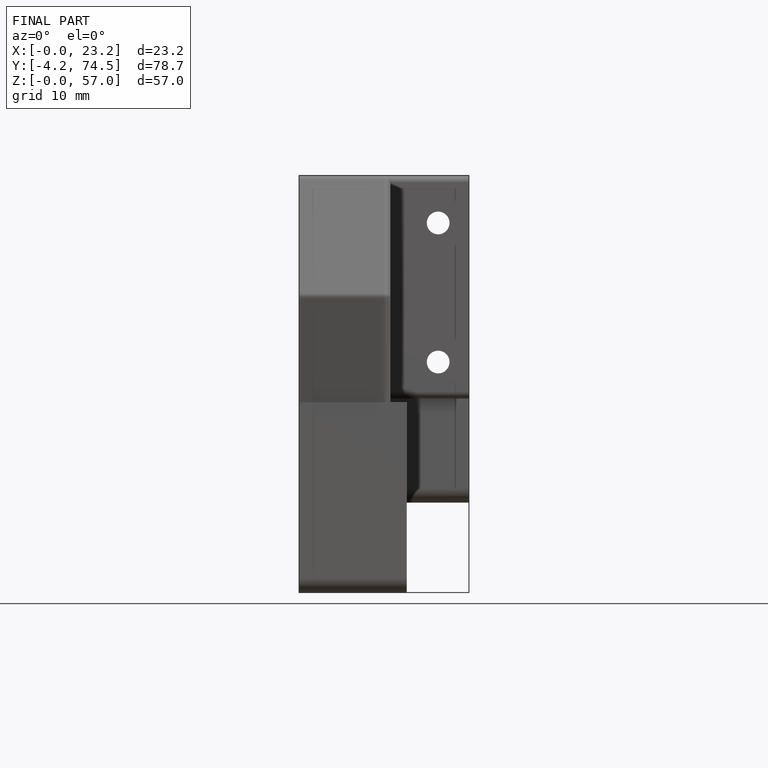
[diagram: finished part — front view with bounding-box wireframe]
